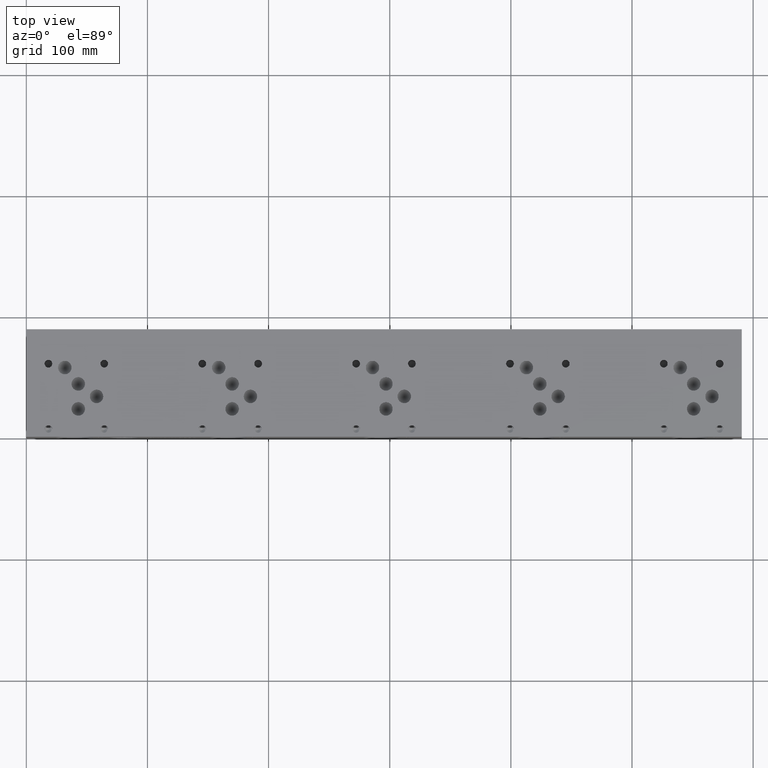
[diagram: clean part render]
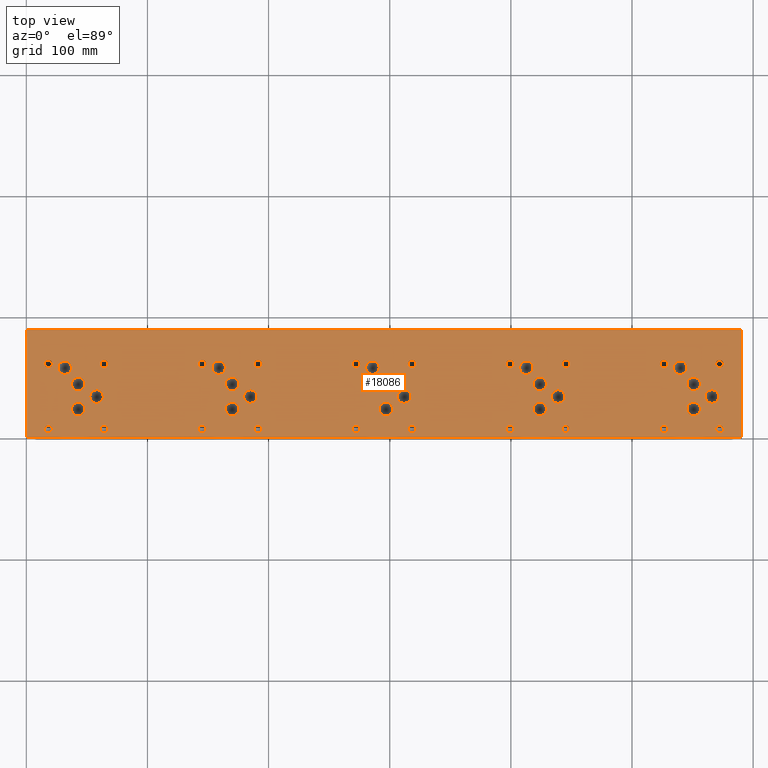
[diagram: same view with one face highlighted and labeled with its STEP entity id]
A machine part, top view. The second image highlights one B-rep face of the part: STEP entity #18086.
In plain terms, the highlighted planar face has unit normal (0, 0, 1).
Its self-contained STEP definition (entity closure, byte-faithful):
#632=CIRCLE('',#18703,3.175);
#633=CIRCLE('',#18704,3.175);
#639=CIRCLE('',#18714,3.175);
#640=CIRCLE('',#18715,3.175);
#646=CIRCLE('',#18725,3.175);
#647=CIRCLE('',#18726,3.175);
#653=CIRCLE('',#18736,3.175);
#654=CIRCLE('',#18737,3.175);
#660=CIRCLE('',#18747,3.175);
#661=CIRCLE('',#18748,3.175);
#667=CIRCLE('',#18758,3.175);
#668=CIRCLE('',#18759,3.175);
#674=CIRCLE('',#18769,3.175);
#675=CIRCLE('',#18770,3.175);
#681=CIRCLE('',#18780,3.175);
#682=CIRCLE('',#18781,3.175);
#688=CIRCLE('',#18791,3.175);
#689=CIRCLE('',#18792,3.175);
#695=CIRCLE('',#18802,3.175);
#696=CIRCLE('',#18803,3.175);
#702=CIRCLE('',#18813,3.175);
#703=CIRCLE('',#18814,3.175);
#709=CIRCLE('',#18824,3.175);
#710=CIRCLE('',#18825,3.175);
#716=CIRCLE('',#18835,3.175);
#717=CIRCLE('',#18836,3.175);
#723=CIRCLE('',#18846,3.175);
#724=CIRCLE('',#18847,3.175);
#730=CIRCLE('',#18857,3.175);
#731=CIRCLE('',#18858,3.175);
#737=CIRCLE('',#18868,3.175);
#738=CIRCLE('',#18869,3.175);
#948=CIRCLE('',#19223,5.5626);
#949=CIRCLE('',#19224,5.5626);
#952=CIRCLE('',#19229,5.5626);
#953=CIRCLE('',#19230,5.5626);
#956=CIRCLE('',#19235,5.5626);
#957=CIRCLE('',#19236,5.5626);
#960=CIRCLE('',#19241,5.5626);
#961=CIRCLE('',#19242,5.5626);
#964=CIRCLE('',#19247,5.5626);
#965=CIRCLE('',#19248,5.5626);
#968=CIRCLE('',#19253,5.5626);
#969=CIRCLE('',#19254,5.5626);
#972=CIRCLE('',#19259,5.5626);
#973=CIRCLE('',#19260,5.5626);
#976=CIRCLE('',#19265,5.5626);
#977=CIRCLE('',#19266,5.5626);
#980=CIRCLE('',#19271,5.5626);
#981=CIRCLE('',#19272,5.5626);
#984=CIRCLE('',#19277,5.5626);
#985=CIRCLE('',#19278,5.5626);
#988=CIRCLE('',#19283,5.5626);
#989=CIRCLE('',#19284,5.5626);
#992=CIRCLE('',#19289,5.5626);
#993=CIRCLE('',#19290,5.5626);
#996=CIRCLE('',#19295,5.5626);
#997=CIRCLE('',#19296,5.5626);
#1000=CIRCLE('',#19301,5.5626);
#1001=CIRCLE('',#19302,5.5626);
#1004=CIRCLE('',#19307,5.5626);
#1005=CIRCLE('',#19308,5.5626);
#1008=CIRCLE('',#19313,5.5626);
#1009=CIRCLE('',#19314,5.5626);
#1012=CIRCLE('',#19319,5.5626);
#1013=CIRCLE('',#19320,5.5626);
#1016=CIRCLE('',#19325,5.5626);
#1017=CIRCLE('',#19326,5.5626);
#1020=CIRCLE('',#19331,5.5626);
#1021=CIRCLE('',#19332,5.5626);
#1024=CIRCLE('',#19337,5.5626);
#1025=CIRCLE('',#19338,5.5626);
#1031=CIRCLE('',#19347,3.175);
#1032=CIRCLE('',#19348,3.175);
#1038=CIRCLE('',#19358,3.175);
#1039=CIRCLE('',#19359,3.175);
#1045=CIRCLE('',#19369,3.175);
#1046=CIRCLE('',#19370,3.175);
#1052=CIRCLE('',#19380,3.175);
#1053=CIRCLE('',#19381,3.175);
#1629=FACE_BOUND('',#3691,.T.);
#1630=FACE_BOUND('',#3692,.T.);
#1631=FACE_BOUND('',#3693,.T.);
#1632=FACE_BOUND('',#3694,.T.);
#1633=FACE_BOUND('',#3695,.T.);
#1634=FACE_BOUND('',#3696,.T.);
#1635=FACE_BOUND('',#3697,.T.);
#1636=FACE_BOUND('',#3698,.T.);
#1637=FACE_BOUND('',#3699,.T.);
#1638=FACE_BOUND('',#3700,.T.);
#1639=FACE_BOUND('',#3701,.T.);
#1640=FACE_BOUND('',#3702,.T.);
#1641=FACE_BOUND('',#3703,.T.);
#1642=FACE_BOUND('',#3704,.T.);
#1643=FACE_BOUND('',#3705,.T.);
#1644=FACE_BOUND('',#3706,.T.);
#1645=FACE_BOUND('',#3707,.T.);
#1646=FACE_BOUND('',#3708,.T.);
#1647=FACE_BOUND('',#3709,.T.);
#1648=FACE_BOUND('',#3710,.T.);
#1649=FACE_BOUND('',#3711,.T.);
#1650=FACE_BOUND('',#3712,.T.);
#1651=FACE_BOUND('',#3713,.T.);
#1652=FACE_BOUND('',#3714,.T.);
#1653=FACE_BOUND('',#3715,.T.);
#1654=FACE_BOUND('',#3716,.T.);
#1655=FACE_BOUND('',#3717,.T.);
#1656=FACE_BOUND('',#3718,.T.);
#1657=FACE_BOUND('',#3719,.T.);
#1658=FACE_BOUND('',#3720,.T.);
#1659=FACE_BOUND('',#3721,.T.);
#1660=FACE_BOUND('',#3722,.T.);
#1661=FACE_BOUND('',#3723,.T.);
#1662=FACE_BOUND('',#3724,.T.);
#1663=FACE_BOUND('',#3725,.T.);
#1664=FACE_BOUND('',#3726,.T.);
#1665=FACE_BOUND('',#3727,.T.);
#1666=FACE_BOUND('',#3728,.T.);
#1667=FACE_BOUND('',#3729,.T.);
#1668=FACE_BOUND('',#3730,.T.);
#2610=FACE_OUTER_BOUND('',#3690,.T.);
#3690=EDGE_LOOP('',(#15992,#15993,#15994,#15995));
#3691=EDGE_LOOP('',(#15996,#15997));
#3692=EDGE_LOOP('',(#15998,#15999));
#3693=EDGE_LOOP('',(#16000,#16001));
#3694=EDGE_LOOP('',(#16002,#16003));
#3695=EDGE_LOOP('',(#16004,#16005));
#3696=EDGE_LOOP('',(#16006,#16007));
#3697=EDGE_LOOP('',(#16008,#16009));
#3698=EDGE_LOOP('',(#16010,#16011));
#3699=EDGE_LOOP('',(#16012,#16013));
#3700=EDGE_LOOP('',(#16014,#16015));
#3701=EDGE_LOOP('',(#16016,#16017));
#3702=EDGE_LOOP('',(#16018,#16019));
#3703=EDGE_LOOP('',(#16020,#16021));
#3704=EDGE_LOOP('',(#16022,#16023));
#3705=EDGE_LOOP('',(#16024,#16025));
#3706=EDGE_LOOP('',(#16026,#16027));
#3707=EDGE_LOOP('',(#16028,#16029));
#3708=EDGE_LOOP('',(#16030,#16031));
#3709=EDGE_LOOP('',(#16032,#16033));
#3710=EDGE_LOOP('',(#16034,#16035));
#3711=EDGE_LOOP('',(#16036,#16037));
#3712=EDGE_LOOP('',(#16038,#16039));
#3713=EDGE_LOOP('',(#16040,#16041));
#3714=EDGE_LOOP('',(#16042,#16043));
#3715=EDGE_LOOP('',(#16044,#16045));
#3716=EDGE_LOOP('',(#16046,#16047));
#3717=EDGE_LOOP('',(#16048,#16049));
#3718=EDGE_LOOP('',(#16050,#16051));
#3719=EDGE_LOOP('',(#16052,#16053));
#3720=EDGE_LOOP('',(#16054,#16055));
#3721=EDGE_LOOP('',(#16056,#16057));
#3722=EDGE_LOOP('',(#16058,#16059));
#3723=EDGE_LOOP('',(#16060,#16061));
#3724=EDGE_LOOP('',(#16062,#16063));
#3725=EDGE_LOOP('',(#16064,#16065));
#3726=EDGE_LOOP('',(#16066,#16067));
#3727=EDGE_LOOP('',(#16068,#16069));
#3728=EDGE_LOOP('',(#16070,#16071));
#3729=EDGE_LOOP('',(#16072,#16073));
#3730=EDGE_LOOP('',(#16074,#16075));
#3767=LINE('',#23558,#5285);
#4889=LINE('',#29275,#6407);
#4923=LINE('',#29497,#6441);
#5249=LINE('',#31543,#6767);
#5285=VECTOR('',#19452,10.);
#6407=VECTOR('',#21328,10.);
#6441=VECTOR('',#21398,10.);
#6767=VECTOR('',#23474,10.);
#6792=VERTEX_POINT('',#23555);
#6793=VERTEX_POINT('',#23557);
#7835=VERTEX_POINT('',#29273);
#7877=VERTEX_POINT('',#29496);
#8043=VERTEX_POINT('',#30166);
#8044=VERTEX_POINT('',#30167);
#8051=VERTEX_POINT('',#30188);
#8052=VERTEX_POINT('',#30189);
#8059=VERTEX_POINT('',#30210);
#8060=VERTEX_POINT('',#30211);
#8067=VERTEX_POINT('',#30232);
#8068=VERTEX_POINT('',#30233);
#8075=VERTEX_POINT('',#30254);
#8076=VERTEX_POINT('',#30255);
#8083=VERTEX_POINT('',#30276);
#8084=VERTEX_POINT('',#30277);
#8091=VERTEX_POINT('',#30298);
#8092=VERTEX_POINT('',#30299);
#8099=VERTEX_POINT('',#30320);
#8100=VERTEX_POINT('',#30321);
#8107=VERTEX_POINT('',#30342);
#8108=VERTEX_POINT('',#30343);
#8115=VERTEX_POINT('',#30364);
#8116=VERTEX_POINT('',#30365);
#8123=VERTEX_POINT('',#30386);
#8124=VERTEX_POINT('',#30387);
#8131=VERTEX_POINT('',#30408);
#8132=VERTEX_POINT('',#30409);
#8139=VERTEX_POINT('',#30430);
#8140=VERTEX_POINT('',#30431);
#8147=VERTEX_POINT('',#30452);
#8148=VERTEX_POINT('',#30453);
#8155=VERTEX_POINT('',#30474);
#8156=VERTEX_POINT('',#30475);
#8163=VERTEX_POINT('',#30496);
#8164=VERTEX_POINT('',#30497);
#8394=VERTEX_POINT('',#31200);
#8395=VERTEX_POINT('',#31201);
#8399=VERTEX_POINT('',#31213);
#8400=VERTEX_POINT('',#31214);
#8404=VERTEX_POINT('',#31226);
#8405=VERTEX_POINT('',#31227);
#8409=VERTEX_POINT('',#31239);
#8410=VERTEX_POINT('',#31240);
#8414=VERTEX_POINT('',#31252);
#8415=VERTEX_POINT('',#31253);
#8419=VERTEX_POINT('',#31265);
#8420=VERTEX_POINT('',#31266);
#8424=VERTEX_POINT('',#31278);
#8425=VERTEX_POINT('',#31279);
#8429=VERTEX_POINT('',#31291);
#8430=VERTEX_POINT('',#31292);
#8434=VERTEX_POINT('',#31304);
#8435=VERTEX_POINT('',#31305);
#8439=VERTEX_POINT('',#31317);
#8440=VERTEX_POINT('',#31318);
#8444=VERTEX_POINT('',#31330);
#8445=VERTEX_POINT('',#31331);
#8449=VERTEX_POINT('',#31343);
#8450=VERTEX_POINT('',#31344);
#8454=VERTEX_POINT('',#31356);
#8455=VERTEX_POINT('',#31357);
#8459=VERTEX_POINT('',#31369);
#8460=VERTEX_POINT('',#31370);
#8464=VERTEX_POINT('',#31382);
#8465=VERTEX_POINT('',#31383);
#8469=VERTEX_POINT('',#31395);
#8470=VERTEX_POINT('',#31396);
#8474=VERTEX_POINT('',#31408);
#8475=VERTEX_POINT('',#31409);
#8479=VERTEX_POINT('',#31421);
#8480=VERTEX_POINT('',#31422);
#8484=VERTEX_POINT('',#31434);
#8485=VERTEX_POINT('',#31435);
#8489=VERTEX_POINT('',#31447);
#8490=VERTEX_POINT('',#31448);
#8497=VERTEX_POINT('',#31467);
#8498=VERTEX_POINT('',#31468);
#8505=VERTEX_POINT('',#31489);
#8506=VERTEX_POINT('',#31490);
#8513=VERTEX_POINT('',#31511);
#8514=VERTEX_POINT('',#31512);
#8521=VERTEX_POINT('',#31533);
#8522=VERTEX_POINT('',#31534);
#8558=EDGE_CURVE('',#6793,#6792,#3767,.T.);
#10102=EDGE_CURVE('',#6792,#7835,#4889,.T.);
#10160=EDGE_CURVE('',#7877,#6793,#4923,.T.);
#10404=EDGE_CURVE('',#8043,#8044,#632,.T.);
#10405=EDGE_CURVE('',#8044,#8043,#633,.T.);
#10414=EDGE_CURVE('',#8051,#8052,#639,.T.);
#10415=EDGE_CURVE('',#8052,#8051,#640,.T.);
#10424=EDGE_CURVE('',#8059,#8060,#646,.T.);
#10425=EDGE_CURVE('',#8060,#8059,#647,.T.);
#10434=EDGE_CURVE('',#8067,#8068,#653,.T.);
#10435=EDGE_CURVE('',#8068,#8067,#654,.T.);
#10444=EDGE_CURVE('',#8075,#8076,#660,.T.);
#10445=EDGE_CURVE('',#8076,#8075,#661,.T.);
#10454=EDGE_CURVE('',#8083,#8084,#667,.T.);
#10455=EDGE_CURVE('',#8084,#8083,#668,.T.);
#10464=EDGE_CURVE('',#8091,#8092,#674,.T.);
#10465=EDGE_CURVE('',#8092,#8091,#675,.T.);
#10474=EDGE_CURVE('',#8099,#8100,#681,.T.);
#10475=EDGE_CURVE('',#8100,#8099,#682,.T.);
#10484=EDGE_CURVE('',#8107,#8108,#688,.T.);
#10485=EDGE_CURVE('',#8108,#8107,#689,.T.);
#10494=EDGE_CURVE('',#8115,#8116,#695,.T.);
#10495=EDGE_CURVE('',#8116,#8115,#696,.T.);
#10504=EDGE_CURVE('',#8123,#8124,#702,.T.);
#10505=EDGE_CURVE('',#8124,#8123,#703,.T.);
#10514=EDGE_CURVE('',#8131,#8132,#709,.T.);
#10515=EDGE_CURVE('',#8132,#8131,#710,.T.);
#10524=EDGE_CURVE('',#8139,#8140,#716,.T.);
#10525=EDGE_CURVE('',#8140,#8139,#717,.T.);
#10534=EDGE_CURVE('',#8147,#8148,#723,.T.);
#10535=EDGE_CURVE('',#8148,#8147,#724,.T.);
#10544=EDGE_CURVE('',#8155,#8156,#730,.T.);
#10545=EDGE_CURVE('',#8156,#8155,#731,.T.);
#10554=EDGE_CURVE('',#8163,#8164,#737,.T.);
#10555=EDGE_CURVE('',#8164,#8163,#738,.T.);
#10883=EDGE_CURVE('',#8394,#8395,#948,.T.);
#10884=EDGE_CURVE('',#8395,#8394,#949,.T.);
#10889=EDGE_CURVE('',#8399,#8400,#952,.T.);
#10890=EDGE_CURVE('',#8400,#8399,#953,.T.);
#10895=EDGE_CURVE('',#8404,#8405,#956,.T.);
#10896=EDGE_CURVE('',#8405,#8404,#957,.T.);
#10901=EDGE_CURVE('',#8409,#8410,#960,.T.);
#10902=EDGE_CURVE('',#8410,#8409,#961,.T.);
#10907=EDGE_CURVE('',#8414,#8415,#964,.T.);
#10908=EDGE_CURVE('',#8415,#8414,#965,.T.);
#10913=EDGE_CURVE('',#8419,#8420,#968,.T.);
#10914=EDGE_CURVE('',#8420,#8419,#969,.T.);
#10919=EDGE_CURVE('',#8424,#8425,#972,.T.);
#10920=EDGE_CURVE('',#8425,#8424,#973,.T.);
#10925=EDGE_CURVE('',#8429,#8430,#976,.T.);
#10926=EDGE_CURVE('',#8430,#8429,#977,.T.);
#10931=EDGE_CURVE('',#8434,#8435,#980,.T.);
#10932=EDGE_CURVE('',#8435,#8434,#981,.T.);
#10937=EDGE_CURVE('',#8439,#8440,#984,.T.);
#10938=EDGE_CURVE('',#8440,#8439,#985,.T.);
#10943=EDGE_CURVE('',#8444,#8445,#988,.T.);
#10944=EDGE_CURVE('',#8445,#8444,#989,.T.);
#10949=EDGE_CURVE('',#8449,#8450,#992,.T.);
#10950=EDGE_CURVE('',#8450,#8449,#993,.T.);
#10955=EDGE_CURVE('',#8454,#8455,#996,.T.);
#10956=EDGE_CURVE('',#8455,#8454,#997,.T.);
#10961=EDGE_CURVE('',#8459,#8460,#1000,.T.);
#10962=EDGE_CURVE('',#8460,#8459,#1001,.T.);
#10967=EDGE_CURVE('',#8464,#8465,#1004,.T.);
#10968=EDGE_CURVE('',#8465,#8464,#1005,.T.);
#10973=EDGE_CURVE('',#8469,#8470,#1008,.T.);
#10974=EDGE_CURVE('',#8470,#8469,#1009,.T.);
#10979=EDGE_CURVE('',#8474,#8475,#1012,.T.);
#10980=EDGE_CURVE('',#8475,#8474,#1013,.T.);
#10985=EDGE_CURVE('',#8479,#8480,#1016,.T.);
#10986=EDGE_CURVE('',#8480,#8479,#1017,.T.);
#10991=EDGE_CURVE('',#8484,#8485,#1020,.T.);
#10992=EDGE_CURVE('',#8485,#8484,#1021,.T.);
#10997=EDGE_CURVE('',#8489,#8490,#1024,.T.);
#10998=EDGE_CURVE('',#8490,#8489,#1025,.T.);
#11006=EDGE_CURVE('',#8497,#8498,#1031,.T.);
#11007=EDGE_CURVE('',#8498,#8497,#1032,.T.);
#11016=EDGE_CURVE('',#8505,#8506,#1038,.T.);
#11017=EDGE_CURVE('',#8506,#8505,#1039,.T.);
#11026=EDGE_CURVE('',#8513,#8514,#1045,.T.);
#11027=EDGE_CURVE('',#8514,#8513,#1046,.T.);
#11036=EDGE_CURVE('',#8521,#8522,#1052,.T.);
#11037=EDGE_CURVE('',#8522,#8521,#1053,.T.);
#11041=EDGE_CURVE('',#7835,#7877,#5249,.T.);
#15992=ORIENTED_EDGE('',*,*,#8558,.T.);
#15993=ORIENTED_EDGE('',*,*,#10102,.T.);
#15994=ORIENTED_EDGE('',*,*,#11041,.T.);
#15995=ORIENTED_EDGE('',*,*,#10160,.T.);
#15996=ORIENTED_EDGE('',*,*,#10404,.T.);
#15997=ORIENTED_EDGE('',*,*,#10405,.T.);
#15998=ORIENTED_EDGE('',*,*,#10414,.T.);
#15999=ORIENTED_EDGE('',*,*,#10415,.T.);
#16000=ORIENTED_EDGE('',*,*,#10424,.T.);
#16001=ORIENTED_EDGE('',*,*,#10425,.T.);
#16002=ORIENTED_EDGE('',*,*,#10434,.T.);
#16003=ORIENTED_EDGE('',*,*,#10435,.T.);
#16004=ORIENTED_EDGE('',*,*,#10444,.T.);
#16005=ORIENTED_EDGE('',*,*,#10445,.T.);
#16006=ORIENTED_EDGE('',*,*,#10454,.T.);
#16007=ORIENTED_EDGE('',*,*,#10455,.T.);
#16008=ORIENTED_EDGE('',*,*,#10464,.T.);
#16009=ORIENTED_EDGE('',*,*,#10465,.T.);
#16010=ORIENTED_EDGE('',*,*,#10474,.T.);
#16011=ORIENTED_EDGE('',*,*,#10475,.T.);
#16012=ORIENTED_EDGE('',*,*,#10484,.T.);
#16013=ORIENTED_EDGE('',*,*,#10485,.T.);
#16014=ORIENTED_EDGE('',*,*,#10494,.T.);
#16015=ORIENTED_EDGE('',*,*,#10495,.T.);
#16016=ORIENTED_EDGE('',*,*,#10504,.T.);
#16017=ORIENTED_EDGE('',*,*,#10505,.T.);
#16018=ORIENTED_EDGE('',*,*,#10514,.T.);
#16019=ORIENTED_EDGE('',*,*,#10515,.T.);
#16020=ORIENTED_EDGE('',*,*,#10524,.T.);
#16021=ORIENTED_EDGE('',*,*,#10525,.T.);
#16022=ORIENTED_EDGE('',*,*,#10534,.T.);
#16023=ORIENTED_EDGE('',*,*,#10535,.T.);
#16024=ORIENTED_EDGE('',*,*,#10544,.T.);
#16025=ORIENTED_EDGE('',*,*,#10545,.T.);
#16026=ORIENTED_EDGE('',*,*,#10554,.T.);
#16027=ORIENTED_EDGE('',*,*,#10555,.T.);
#16028=ORIENTED_EDGE('',*,*,#10883,.T.);
#16029=ORIENTED_EDGE('',*,*,#10884,.T.);
#16030=ORIENTED_EDGE('',*,*,#10889,.T.);
#16031=ORIENTED_EDGE('',*,*,#10890,.T.);
#16032=ORIENTED_EDGE('',*,*,#10895,.T.);
#16033=ORIENTED_EDGE('',*,*,#10896,.T.);
#16034=ORIENTED_EDGE('',*,*,#10901,.T.);
#16035=ORIENTED_EDGE('',*,*,#10902,.T.);
#16036=ORIENTED_EDGE('',*,*,#10907,.T.);
#16037=ORIENTED_EDGE('',*,*,#10908,.T.);
#16038=ORIENTED_EDGE('',*,*,#10913,.T.);
#16039=ORIENTED_EDGE('',*,*,#10914,.T.);
#16040=ORIENTED_EDGE('',*,*,#10919,.T.);
#16041=ORIENTED_EDGE('',*,*,#10920,.T.);
#16042=ORIENTED_EDGE('',*,*,#10925,.T.);
#16043=ORIENTED_EDGE('',*,*,#10926,.T.);
#16044=ORIENTED_EDGE('',*,*,#10931,.T.);
#16045=ORIENTED_EDGE('',*,*,#10932,.T.);
#16046=ORIENTED_EDGE('',*,*,#10937,.T.);
#16047=ORIENTED_EDGE('',*,*,#10938,.T.);
#16048=ORIENTED_EDGE('',*,*,#10943,.T.);
#16049=ORIENTED_EDGE('',*,*,#10944,.T.);
#16050=ORIENTED_EDGE('',*,*,#10949,.T.);
#16051=ORIENTED_EDGE('',*,*,#10950,.T.);
#16052=ORIENTED_EDGE('',*,*,#10955,.T.);
#16053=ORIENTED_EDGE('',*,*,#10956,.T.);
#16054=ORIENTED_EDGE('',*,*,#10961,.T.);
#16055=ORIENTED_EDGE('',*,*,#10962,.T.);
#16056=ORIENTED_EDGE('',*,*,#10967,.T.);
#16057=ORIENTED_EDGE('',*,*,#10968,.T.);
#16058=ORIENTED_EDGE('',*,*,#10973,.T.);
#16059=ORIENTED_EDGE('',*,*,#10974,.T.);
#16060=ORIENTED_EDGE('',*,*,#10979,.T.);
#16061=ORIENTED_EDGE('',*,*,#10980,.T.);
#16062=ORIENTED_EDGE('',*,*,#10985,.T.);
#16063=ORIENTED_EDGE('',*,*,#10986,.T.);
#16064=ORIENTED_EDGE('',*,*,#10991,.T.);
#16065=ORIENTED_EDGE('',*,*,#10992,.T.);
#16066=ORIENTED_EDGE('',*,*,#10997,.T.);
#16067=ORIENTED_EDGE('',*,*,#10998,.T.);
#16068=ORIENTED_EDGE('',*,*,#11006,.T.);
#16069=ORIENTED_EDGE('',*,*,#11007,.T.);
#16070=ORIENTED_EDGE('',*,*,#11016,.T.);
#16071=ORIENTED_EDGE('',*,*,#11017,.T.);
#16072=ORIENTED_EDGE('',*,*,#11026,.T.);
#16073=ORIENTED_EDGE('',*,*,#11027,.T.);
#16074=ORIENTED_EDGE('',*,*,#11036,.T.);
#16075=ORIENTED_EDGE('',*,*,#11037,.T.);
#16544=PLANE('',#19387);
#18086=ADVANCED_FACE('',(#2610,#1629,#1630,#1631,#1632,#1633,#1634,#1635,
#1636,#1637,#1638,#1639,#1640,#1641,#1642,#1643,#1644,#1645,#1646,#1647,
#1648,#1649,#1650,#1651,#1652,#1653,#1654,#1655,#1656,#1657,#1658,#1659,
#1660,#1661,#1662,#1663,#1664,#1665,#1666,#1667,#1668),#16544,.T.);
#18703=AXIS2_PLACEMENT_3D('',#30168,#21895,#21896);
#18704=AXIS2_PLACEMENT_3D('',#30169,#21897,#21898);
#18714=AXIS2_PLACEMENT_3D('',#30190,#21920,#21921);
#18715=AXIS2_PLACEMENT_3D('',#30191,#21922,#21923);
#18725=AXIS2_PLACEMENT_3D('',#30212,#21945,#21946);
#18726=AXIS2_PLACEMENT_3D('',#30213,#21947,#21948);
#18736=AXIS2_PLACEMENT_3D('',#30234,#21970,#21971);
#18737=AXIS2_PLACEMENT_3D('',#30235,#21972,#21973);
#18747=AXIS2_PLACEMENT_3D('',#30256,#21995,#21996);
#18748=AXIS2_PLACEMENT_3D('',#30257,#21997,#21998);
#18758=AXIS2_PLACEMENT_3D('',#30278,#22020,#22021);
#18759=AXIS2_PLACEMENT_3D('',#30279,#22022,#22023);
#18769=AXIS2_PLACEMENT_3D('',#30300,#22045,#22046);
#18770=AXIS2_PLACEMENT_3D('',#30301,#22047,#22048);
#18780=AXIS2_PLACEMENT_3D('',#30322,#22070,#22071);
#18781=AXIS2_PLACEMENT_3D('',#30323,#22072,#22073);
#18791=AXIS2_PLACEMENT_3D('',#30344,#22095,#22096);
#18792=AXIS2_PLACEMENT_3D('',#30345,#22097,#22098);
#18802=AXIS2_PLACEMENT_3D('',#30366,#22120,#22121);
#18803=AXIS2_PLACEMENT_3D('',#30367,#22122,#22123);
#18813=AXIS2_PLACEMENT_3D('',#30388,#22145,#22146);
#18814=AXIS2_PLACEMENT_3D('',#30389,#22147,#22148);
#18824=AXIS2_PLACEMENT_3D('',#30410,#22170,#22171);
#18825=AXIS2_PLACEMENT_3D('',#30411,#22172,#22173);
#18835=AXIS2_PLACEMENT_3D('',#30432,#22195,#22196);
#18836=AXIS2_PLACEMENT_3D('',#30433,#22197,#22198);
#18846=AXIS2_PLACEMENT_3D('',#30454,#22220,#22221);
#18847=AXIS2_PLACEMENT_3D('',#30455,#22222,#22223);
#18857=AXIS2_PLACEMENT_3D('',#30476,#22245,#22246);
#18858=AXIS2_PLACEMENT_3D('',#30477,#22247,#22248);
#18868=AXIS2_PLACEMENT_3D('',#30498,#22270,#22271);
#18869=AXIS2_PLACEMENT_3D('',#30499,#22272,#22273);
#19223=AXIS2_PLACEMENT_3D('',#31202,#23098,#23099);
#19224=AXIS2_PLACEMENT_3D('',#31203,#23100,#23101);
#19229=AXIS2_PLACEMENT_3D('',#31215,#23112,#23113);
#19230=AXIS2_PLACEMENT_3D('',#31216,#23114,#23115);
#19235=AXIS2_PLACEMENT_3D('',#31228,#23126,#23127);
#19236=AXIS2_PLACEMENT_3D('',#31229,#23128,#23129);
#19241=AXIS2_PLACEMENT_3D('',#31241,#23140,#23141);
#19242=AXIS2_PLACEMENT_3D('',#31242,#23142,#23143);
#19247=AXIS2_PLACEMENT_3D('',#31254,#23154,#23155);
#19248=AXIS2_PLACEMENT_3D('',#31255,#23156,#23157);
#19253=AXIS2_PLACEMENT_3D('',#31267,#23168,#23169);
#19254=AXIS2_PLACEMENT_3D('',#31268,#23170,#23171);
#19259=AXIS2_PLACEMENT_3D('',#31280,#23182,#23183);
#19260=AXIS2_PLACEMENT_3D('',#31281,#23184,#23185);
#19265=AXIS2_PLACEMENT_3D('',#31293,#23196,#23197);
#19266=AXIS2_PLACEMENT_3D('',#31294,#23198,#23199);
#19271=AXIS2_PLACEMENT_3D('',#31306,#23210,#23211);
#19272=AXIS2_PLACEMENT_3D('',#31307,#23212,#23213);
#19277=AXIS2_PLACEMENT_3D('',#31319,#23224,#23225);
#19278=AXIS2_PLACEMENT_3D('',#31320,#23226,#23227);
#19283=AXIS2_PLACEMENT_3D('',#31332,#23238,#23239);
#19284=AXIS2_PLACEMENT_3D('',#31333,#23240,#23241);
#19289=AXIS2_PLACEMENT_3D('',#31345,#23252,#23253);
#19290=AXIS2_PLACEMENT_3D('',#31346,#23254,#23255);
#19295=AXIS2_PLACEMENT_3D('',#31358,#23266,#23267);
#19296=AXIS2_PLACEMENT_3D('',#31359,#23268,#23269);
#19301=AXIS2_PLACEMENT_3D('',#31371,#23280,#23281);
#19302=AXIS2_PLACEMENT_3D('',#31372,#23282,#23283);
#19307=AXIS2_PLACEMENT_3D('',#31384,#23294,#23295);
#19308=AXIS2_PLACEMENT_3D('',#31385,#23296,#23297);
#19313=AXIS2_PLACEMENT_3D('',#31397,#23308,#23309);
#19314=AXIS2_PLACEMENT_3D('',#31398,#23310,#23311);
#19319=AXIS2_PLACEMENT_3D('',#31410,#23322,#23323);
#19320=AXIS2_PLACEMENT_3D('',#31411,#23324,#23325);
#19325=AXIS2_PLACEMENT_3D('',#31423,#23336,#23337);
#19326=AXIS2_PLACEMENT_3D('',#31424,#23338,#23339);
#19331=AXIS2_PLACEMENT_3D('',#31436,#23350,#23351);
#19332=AXIS2_PLACEMENT_3D('',#31437,#23352,#23353);
#19337=AXIS2_PLACEMENT_3D('',#31449,#23364,#23365);
#19338=AXIS2_PLACEMENT_3D('',#31450,#23366,#23367);
#19347=AXIS2_PLACEMENT_3D('',#31469,#23386,#23387);
#19348=AXIS2_PLACEMENT_3D('',#31470,#23388,#23389);
#19358=AXIS2_PLACEMENT_3D('',#31491,#23411,#23412);
#19359=AXIS2_PLACEMENT_3D('',#31492,#23413,#23414);
#19369=AXIS2_PLACEMENT_3D('',#31513,#23436,#23437);
#19370=AXIS2_PLACEMENT_3D('',#31514,#23438,#23439);
#19380=AXIS2_PLACEMENT_3D('',#31535,#23461,#23462);
#19381=AXIS2_PLACEMENT_3D('',#31536,#23463,#23464);
#19387=AXIS2_PLACEMENT_3D('',#31546,#23479,#23480);
#19452=DIRECTION('',(1.,0.,0.));
#21328=DIRECTION('',(0.,1.,0.));
#21398=DIRECTION('',(0.,-1.,0.));
#21895=DIRECTION('center_axis',(0.,0.,-1.));
#21896=DIRECTION('ref_axis',(1.,0.,0.));
#21897=DIRECTION('center_axis',(0.,0.,-1.));
#21898=DIRECTION('ref_axis',(1.,0.,0.));
#21920=DIRECTION('center_axis',(0.,0.,-1.));
#21921=DIRECTION('ref_axis',(1.,0.,0.));
#21922=DIRECTION('center_axis',(0.,0.,-1.));
#21923=DIRECTION('ref_axis',(1.,0.,0.));
#21945=DIRECTION('center_axis',(0.,0.,-1.));
#21946=DIRECTION('ref_axis',(1.,0.,0.));
#21947=DIRECTION('center_axis',(0.,0.,-1.));
#21948=DIRECTION('ref_axis',(1.,0.,0.));
#21970=DIRECTION('center_axis',(0.,0.,-1.));
#21971=DIRECTION('ref_axis',(1.,0.,0.));
#21972=DIRECTION('center_axis',(0.,0.,-1.));
#21973=DIRECTION('ref_axis',(1.,0.,0.));
#21995=DIRECTION('center_axis',(0.,0.,-1.));
#21996=DIRECTION('ref_axis',(1.,0.,0.));
#21997=DIRECTION('center_axis',(0.,0.,-1.));
#21998=DIRECTION('ref_axis',(1.,0.,0.));
#22020=DIRECTION('center_axis',(0.,0.,-1.));
#22021=DIRECTION('ref_axis',(1.,0.,0.));
#22022=DIRECTION('center_axis',(0.,0.,-1.));
#22023=DIRECTION('ref_axis',(1.,0.,0.));
#22045=DIRECTION('center_axis',(0.,0.,-1.));
#22046=DIRECTION('ref_axis',(1.,0.,0.));
#22047=DIRECTION('center_axis',(0.,0.,-1.));
#22048=DIRECTION('ref_axis',(1.,0.,0.));
#22070=DIRECTION('center_axis',(0.,0.,-1.));
#22071=DIRECTION('ref_axis',(1.,0.,0.));
#22072=DIRECTION('center_axis',(0.,0.,-1.));
#22073=DIRECTION('ref_axis',(1.,0.,0.));
#22095=DIRECTION('center_axis',(0.,0.,-1.));
#22096=DIRECTION('ref_axis',(1.,0.,0.));
#22097=DIRECTION('center_axis',(0.,0.,-1.));
#22098=DIRECTION('ref_axis',(1.,0.,0.));
#22120=DIRECTION('center_axis',(0.,0.,-1.));
#22121=DIRECTION('ref_axis',(1.,0.,0.));
#22122=DIRECTION('center_axis',(0.,0.,-1.));
#22123=DIRECTION('ref_axis',(1.,0.,0.));
#22145=DIRECTION('center_axis',(0.,0.,-1.));
#22146=DIRECTION('ref_axis',(1.,0.,0.));
#22147=DIRECTION('center_axis',(0.,0.,-1.));
#22148=DIRECTION('ref_axis',(1.,0.,0.));
#22170=DIRECTION('center_axis',(0.,0.,-1.));
#22171=DIRECTION('ref_axis',(1.,0.,0.));
#22172=DIRECTION('center_axis',(0.,0.,-1.));
#22173=DIRECTION('ref_axis',(1.,0.,0.));
#22195=DIRECTION('center_axis',(0.,0.,-1.));
#22196=DIRECTION('ref_axis',(1.,0.,0.));
#22197=DIRECTION('center_axis',(0.,0.,-1.));
#22198=DIRECTION('ref_axis',(1.,0.,0.));
#22220=DIRECTION('center_axis',(0.,0.,-1.));
#22221=DIRECTION('ref_axis',(1.,0.,0.));
#22222=DIRECTION('center_axis',(0.,0.,-1.));
#22223=DIRECTION('ref_axis',(1.,0.,0.));
#22245=DIRECTION('center_axis',(0.,0.,-1.));
#22246=DIRECTION('ref_axis',(1.,0.,0.));
#22247=DIRECTION('center_axis',(0.,0.,-1.));
#22248=DIRECTION('ref_axis',(1.,0.,0.));
#22270=DIRECTION('center_axis',(0.,0.,-1.));
#22271=DIRECTION('ref_axis',(1.,0.,0.));
#22272=DIRECTION('center_axis',(0.,0.,-1.));
#22273=DIRECTION('ref_axis',(1.,0.,0.));
#23098=DIRECTION('center_axis',(0.,0.,-1.));
#23099=DIRECTION('ref_axis',(1.,0.,0.));
#23100=DIRECTION('center_axis',(0.,0.,-1.));
#23101=DIRECTION('ref_axis',(1.,0.,0.));
#23112=DIRECTION('center_axis',(0.,0.,-1.));
#23113=DIRECTION('ref_axis',(1.,0.,0.));
#23114=DIRECTION('center_axis',(0.,0.,-1.));
#23115=DIRECTION('ref_axis',(1.,0.,0.));
#23126=DIRECTION('center_axis',(0.,0.,-1.));
#23127=DIRECTION('ref_axis',(1.,0.,0.));
#23128=DIRECTION('center_axis',(0.,0.,-1.));
#23129=DIRECTION('ref_axis',(1.,0.,0.));
#23140=DIRECTION('center_axis',(0.,0.,-1.));
#23141=DIRECTION('ref_axis',(1.,0.,0.));
#23142=DIRECTION('center_axis',(0.,0.,-1.));
#23143=DIRECTION('ref_axis',(1.,0.,0.));
#23154=DIRECTION('center_axis',(0.,0.,-1.));
#23155=DIRECTION('ref_axis',(1.,0.,0.));
#23156=DIRECTION('center_axis',(0.,0.,-1.));
#23157=DIRECTION('ref_axis',(1.,0.,0.));
#23168=DIRECTION('center_axis',(0.,0.,-1.));
#23169=DIRECTION('ref_axis',(1.,0.,0.));
#23170=DIRECTION('center_axis',(0.,0.,-1.));
#23171=DIRECTION('ref_axis',(1.,0.,0.));
#23182=DIRECTION('center_axis',(0.,0.,-1.));
#23183=DIRECTION('ref_axis',(1.,0.,0.));
#23184=DIRECTION('center_axis',(0.,0.,-1.));
#23185=DIRECTION('ref_axis',(1.,0.,0.));
#23196=DIRECTION('center_axis',(0.,0.,-1.));
#23197=DIRECTION('ref_axis',(1.,0.,0.));
#23198=DIRECTION('center_axis',(0.,0.,-1.));
#23199=DIRECTION('ref_axis',(1.,0.,0.));
#23210=DIRECTION('center_axis',(0.,0.,-1.));
#23211=DIRECTION('ref_axis',(1.,0.,0.));
#23212=DIRECTION('center_axis',(0.,0.,-1.));
#23213=DIRECTION('ref_axis',(1.,0.,0.));
#23224=DIRECTION('center_axis',(0.,0.,-1.));
#23225=DIRECTION('ref_axis',(1.,0.,0.));
#23226=DIRECTION('center_axis',(0.,0.,-1.));
#23227=DIRECTION('ref_axis',(1.,0.,0.));
#23238=DIRECTION('center_axis',(0.,0.,-1.));
#23239=DIRECTION('ref_axis',(1.,0.,0.));
#23240=DIRECTION('center_axis',(0.,0.,-1.));
#23241=DIRECTION('ref_axis',(1.,0.,0.));
#23252=DIRECTION('center_axis',(0.,0.,-1.));
#23253=DIRECTION('ref_axis',(1.,0.,0.));
#23254=DIRECTION('center_axis',(0.,0.,-1.));
#23255=DIRECTION('ref_axis',(1.,0.,0.));
#23266=DIRECTION('center_axis',(0.,0.,-1.));
#23267=DIRECTION('ref_axis',(1.,0.,0.));
#23268=DIRECTION('center_axis',(0.,0.,-1.));
#23269=DIRECTION('ref_axis',(1.,0.,0.));
#23280=DIRECTION('center_axis',(0.,0.,-1.));
#23281=DIRECTION('ref_axis',(1.,0.,0.));
#23282=DIRECTION('center_axis',(0.,0.,-1.));
#23283=DIRECTION('ref_axis',(1.,0.,0.));
#23294=DIRECTION('center_axis',(0.,0.,-1.));
#23295=DIRECTION('ref_axis',(1.,0.,0.));
#23296=DIRECTION('center_axis',(0.,0.,-1.));
#23297=DIRECTION('ref_axis',(1.,0.,0.));
#23308=DIRECTION('center_axis',(0.,0.,-1.));
#23309=DIRECTION('ref_axis',(1.,0.,0.));
#23310=DIRECTION('center_axis',(0.,0.,-1.));
#23311=DIRECTION('ref_axis',(1.,0.,0.));
#23322=DIRECTION('center_axis',(0.,0.,-1.));
#23323=DIRECTION('ref_axis',(1.,0.,0.));
#23324=DIRECTION('center_axis',(0.,0.,-1.));
#23325=DIRECTION('ref_axis',(1.,0.,0.));
#23336=DIRECTION('center_axis',(0.,0.,-1.));
#23337=DIRECTION('ref_axis',(1.,0.,0.));
#23338=DIRECTION('center_axis',(0.,0.,-1.));
#23339=DIRECTION('ref_axis',(1.,0.,0.));
#23350=DIRECTION('center_axis',(0.,0.,-1.));
#23351=DIRECTION('ref_axis',(1.,0.,0.));
#23352=DIRECTION('center_axis',(0.,0.,-1.));
#23353=DIRECTION('ref_axis',(1.,0.,0.));
#23364=DIRECTION('center_axis',(0.,0.,-1.));
#23365=DIRECTION('ref_axis',(1.,0.,0.));
#23366=DIRECTION('center_axis',(0.,0.,-1.));
#23367=DIRECTION('ref_axis',(1.,0.,0.));
#23386=DIRECTION('center_axis',(0.,0.,-1.));
#23387=DIRECTION('ref_axis',(1.,0.,0.));
#23388=DIRECTION('center_axis',(0.,0.,-1.));
#23389=DIRECTION('ref_axis',(1.,0.,0.));
#23411=DIRECTION('center_axis',(0.,0.,-1.));
#23412=DIRECTION('ref_axis',(1.,0.,0.));
#23413=DIRECTION('center_axis',(0.,0.,-1.));
#23414=DIRECTION('ref_axis',(1.,0.,0.));
#23436=DIRECTION('center_axis',(0.,0.,-1.));
#23437=DIRECTION('ref_axis',(1.,0.,0.));
#23438=DIRECTION('center_axis',(0.,0.,-1.));
#23439=DIRECTION('ref_axis',(1.,0.,0.));
#23461=DIRECTION('center_axis',(0.,0.,-1.));
#23462=DIRECTION('ref_axis',(1.,0.,0.));
#23463=DIRECTION('center_axis',(0.,0.,-1.));
#23464=DIRECTION('ref_axis',(1.,0.,0.));
#23474=DIRECTION('',(-1.,0.,0.));
#23479=DIRECTION('center_axis',(0.,0.,1.));
#23480=DIRECTION('ref_axis',(1.,0.,0.));
#23555=CARTESIAN_POINT('',(590.55,0.,88.9));
#23557=CARTESIAN_POINT('',(0.,0.,88.9));
#23558=CARTESIAN_POINT('',(0.,0.,88.9));
#29273=CARTESIAN_POINT('',(590.55,88.9,88.9));
#29275=CARTESIAN_POINT('',(590.55,0.,88.9));
#29496=CARTESIAN_POINT('',(0.,88.9,88.9));
#29497=CARTESIAN_POINT('',(0.,88.9,88.9));
#30166=CARTESIAN_POINT('',(575.4624,6.35,88.9));
#30167=CARTESIAN_POINT('',(569.1124,6.35,88.9));
#30168=CARTESIAN_POINT('Origin',(572.2874,6.35,88.9));
#30169=CARTESIAN_POINT('Origin',(572.2874,6.35,88.9));
#30188=CARTESIAN_POINT('',(529.4122,60.325,88.9));
#30189=CARTESIAN_POINT('',(523.0622,60.325,88.9));
#30190=CARTESIAN_POINT('Origin',(526.2372,60.325,88.9));
#30191=CARTESIAN_POINT('Origin',(526.2372,60.325,88.9));
#30210=CARTESIAN_POINT('',(448.4624,6.35,88.9));
#30211=CARTESIAN_POINT('',(442.1124,6.35,88.9));
#30212=CARTESIAN_POINT('Origin',(445.2874,6.35,88.9));
#30213=CARTESIAN_POINT('Origin',(445.2874,6.35,88.9));
#30232=CARTESIAN_POINT('',(402.4122,60.325,88.9));
#30233=CARTESIAN_POINT('',(396.0622,60.325,88.9));
#30234=CARTESIAN_POINT('Origin',(399.2372,60.325,88.9));
#30235=CARTESIAN_POINT('Origin',(399.2372,60.325,88.9));
#30254=CARTESIAN_POINT('',(321.4624,6.35,88.9));
#30255=CARTESIAN_POINT('',(315.1124,6.35,88.9));
#30256=CARTESIAN_POINT('Origin',(318.2874,6.35,88.9));
#30257=CARTESIAN_POINT('Origin',(318.2874,6.35,88.9));
#30276=CARTESIAN_POINT('',(275.4122,60.325,88.9));
#30277=CARTESIAN_POINT('',(269.0622,60.325,88.9));
#30278=CARTESIAN_POINT('Origin',(272.2372,60.325,88.9));
#30279=CARTESIAN_POINT('Origin',(272.2372,60.325,88.9));
#30298=CARTESIAN_POINT('',(194.4624,6.35,88.9));
#30299=CARTESIAN_POINT('',(188.1124,6.35,88.9));
#30300=CARTESIAN_POINT('Origin',(191.2874,6.35,88.9));
#30301=CARTESIAN_POINT('Origin',(191.2874,6.35,88.9));
#30320=CARTESIAN_POINT('',(148.4122,60.325,88.9));
#30321=CARTESIAN_POINT('',(142.0622,60.325,88.9));
#30322=CARTESIAN_POINT('Origin',(145.2372,60.325,88.9));
#30323=CARTESIAN_POINT('Origin',(145.2372,60.325,88.9));
#30342=CARTESIAN_POINT('',(194.4624,60.325,88.9));
#30343=CARTESIAN_POINT('',(188.1124,60.325,88.9));
#30344=CARTESIAN_POINT('Origin',(191.2874,60.325,88.9));
#30345=CARTESIAN_POINT('Origin',(191.2874,60.325,88.9));
#30364=CARTESIAN_POINT('',(148.4122,6.35,88.9));
#30365=CARTESIAN_POINT('',(142.0622,6.35,88.9));
#30366=CARTESIAN_POINT('Origin',(145.2372,6.35,88.9));
#30367=CARTESIAN_POINT('Origin',(145.2372,6.35,88.9));
#30386=CARTESIAN_POINT('',(321.4624,60.325,88.9));
#30387=CARTESIAN_POINT('',(315.1124,60.325,88.9));
#30388=CARTESIAN_POINT('Origin',(318.2874,60.325,88.9));
#30389=CARTESIAN_POINT('Origin',(318.2874,60.325,88.9));
#30408=CARTESIAN_POINT('',(275.4122,6.35,88.9));
#30409=CARTESIAN_POINT('',(269.0622,6.35,88.9));
#30410=CARTESIAN_POINT('Origin',(272.2372,6.35,88.9));
#30411=CARTESIAN_POINT('Origin',(272.2372,6.35,88.9));
#30430=CARTESIAN_POINT('',(448.4624,60.325,88.9));
#30431=CARTESIAN_POINT('',(442.1124,60.325,88.9));
#30432=CARTESIAN_POINT('Origin',(445.2874,60.325,88.9));
#30433=CARTESIAN_POINT('Origin',(445.2874,60.325,88.9));
#30452=CARTESIAN_POINT('',(402.4122,6.35,88.9));
#30453=CARTESIAN_POINT('',(396.0622,6.35,88.9));
#30454=CARTESIAN_POINT('Origin',(399.2372,6.35,88.9));
#30455=CARTESIAN_POINT('Origin',(399.2372,6.35,88.9));
#30474=CARTESIAN_POINT('',(575.4624,60.325,88.9));
#30475=CARTESIAN_POINT('',(569.1124,60.325,88.9));
#30476=CARTESIAN_POINT('Origin',(572.2874,60.325,88.9));
#30477=CARTESIAN_POINT('Origin',(572.2874,60.325,88.9));
#30496=CARTESIAN_POINT('',(529.4122,6.35,88.9));
#30497=CARTESIAN_POINT('',(523.0622,6.35,88.9));
#30498=CARTESIAN_POINT('Origin',(526.2372,6.35,88.9));
#30499=CARTESIAN_POINT('Origin',(526.2372,6.35,88.9));
#31200=CARTESIAN_POINT('',(556.4378,43.6372,88.9));
#31201=CARTESIAN_POINT('',(545.3126,43.6372,88.9));
#31202=CARTESIAN_POINT('Origin',(550.8752,43.6372,88.9));
#31203=CARTESIAN_POINT('Origin',(550.8752,43.6372,88.9));
#31213=CARTESIAN_POINT('',(571.5254,33.3248,88.9));
#31214=CARTESIAN_POINT('',(560.4002,33.3248,88.9));
#31215=CARTESIAN_POINT('Origin',(565.9628,33.3248,88.9));
#31216=CARTESIAN_POINT('Origin',(565.9628,33.3248,88.9));
#31226=CARTESIAN_POINT('',(429.4378,43.6372,88.9));
#31227=CARTESIAN_POINT('',(418.3126,43.6372,88.9));
#31228=CARTESIAN_POINT('Origin',(423.8752,43.6372,88.9));
#31229=CARTESIAN_POINT('Origin',(423.8752,43.6372,88.9));
#31239=CARTESIAN_POINT('',(444.5254,33.3248,88.9));
#31240=CARTESIAN_POINT('',(433.4002,33.3248,88.9));
#31241=CARTESIAN_POINT('Origin',(438.9628,33.3248,88.9));
#31242=CARTESIAN_POINT('Origin',(438.9628,33.3248,88.9));
#31252=CARTESIAN_POINT('',(302.4378,43.6372,88.9));
#31253=CARTESIAN_POINT('',(291.3126,43.6372,88.9));
#31254=CARTESIAN_POINT('Origin',(296.8752,43.6372,88.9));
#31255=CARTESIAN_POINT('Origin',(296.8752,43.6372,88.9));
#31265=CARTESIAN_POINT('',(317.5254,33.3248,88.9));
#31266=CARTESIAN_POINT('',(306.4002,33.3248,88.9));
#31267=CARTESIAN_POINT('Origin',(311.9628,33.3248,88.9));
#31268=CARTESIAN_POINT('Origin',(311.9628,33.3248,88.9));
#31278=CARTESIAN_POINT('',(175.4378,43.6372,88.9));
#31279=CARTESIAN_POINT('',(164.3126,43.6372,88.9));
#31280=CARTESIAN_POINT('Origin',(169.8752,43.6372,88.9));
#31281=CARTESIAN_POINT('Origin',(169.8752,43.6372,88.9));
#31291=CARTESIAN_POINT('',(190.5254,33.3248,88.9));
#31292=CARTESIAN_POINT('',(179.4002,33.3248,88.9));
#31293=CARTESIAN_POINT('Origin',(184.9628,33.3248,88.9));
#31294=CARTESIAN_POINT('Origin',(184.9628,33.3248,88.9));
#31304=CARTESIAN_POINT('',(48.4251,43.64228,88.9));
#31305=CARTESIAN_POINT('',(37.2999,43.64228,88.9));
#31306=CARTESIAN_POINT('Origin',(42.8625,43.64228,88.9));
#31307=CARTESIAN_POINT('Origin',(42.8625,43.64228,88.9));
#31317=CARTESIAN_POINT('',(63.5254,33.3248,88.9));
#31318=CARTESIAN_POINT('',(52.4002,33.3248,88.9));
#31319=CARTESIAN_POINT('Origin',(57.9628,33.3248,88.9));
#31320=CARTESIAN_POINT('Origin',(57.9628,33.3248,88.9));
#31330=CARTESIAN_POINT('',(37.3126,57.15,88.9));
#31331=CARTESIAN_POINT('',(26.1874,57.15,88.9));
#31332=CARTESIAN_POINT('Origin',(31.75,57.15,88.9));
#31333=CARTESIAN_POINT('Origin',(31.75,57.15,88.9));
#31343=CARTESIAN_POINT('',(48.43018,23.00732,88.9));
#31344=CARTESIAN_POINT('',(37.30498,23.00732,88.9));
#31345=CARTESIAN_POINT('Origin',(42.86758,23.00732,88.9));
#31346=CARTESIAN_POINT('Origin',(42.86758,23.00732,88.9));
#31356=CARTESIAN_POINT('',(164.3126,57.15,88.9));
#31357=CARTESIAN_POINT('',(153.1874,57.15,88.9));
#31358=CARTESIAN_POINT('Origin',(158.75,57.15,88.9));
#31359=CARTESIAN_POINT('Origin',(158.75,57.15,88.9));
#31369=CARTESIAN_POINT('',(175.4378,23.0124,88.9));
#31370=CARTESIAN_POINT('',(164.3126,23.0124,88.9));
#31371=CARTESIAN_POINT('Origin',(169.8752,23.0124,88.9));
#31372=CARTESIAN_POINT('Origin',(169.8752,23.0124,88.9));
#31382=CARTESIAN_POINT('',(291.3126,57.15,88.9));
#31383=CARTESIAN_POINT('',(280.1874,57.15,88.9));
#31384=CARTESIAN_POINT('Origin',(285.75,57.15,88.9));
#31385=CARTESIAN_POINT('Origin',(285.75,57.15,88.9));
#31395=CARTESIAN_POINT('',(302.4378,23.0124,88.9));
#31396=CARTESIAN_POINT('',(291.3126,23.0124,88.9));
#31397=CARTESIAN_POINT('Origin',(296.8752,23.0124,88.9));
#31398=CARTESIAN_POINT('Origin',(296.8752,23.0124,88.9));
#31408=CARTESIAN_POINT('',(418.3126,57.15,88.9));
#31409=CARTESIAN_POINT('',(407.1874,57.15,88.9));
#31410=CARTESIAN_POINT('Origin',(412.75,57.15,88.9));
#31411=CARTESIAN_POINT('Origin',(412.75,57.15,88.9));
#31421=CARTESIAN_POINT('',(429.4378,23.0124,88.9));
#31422=CARTESIAN_POINT('',(418.3126,23.0124,88.9));
#31423=CARTESIAN_POINT('Origin',(423.8752,23.0124,88.9));
#31424=CARTESIAN_POINT('Origin',(423.8752,23.0124,88.9));
#31434=CARTESIAN_POINT('',(545.3126,57.15,88.9));
#31435=CARTESIAN_POINT('',(534.1874,57.15,88.9));
#31436=CARTESIAN_POINT('Origin',(539.75,57.15,88.9));
#31437=CARTESIAN_POINT('Origin',(539.75,57.15,88.9));
#31447=CARTESIAN_POINT('',(556.4378,23.0124,88.9));
#31448=CARTESIAN_POINT('',(545.3126,23.0124,88.9));
#31449=CARTESIAN_POINT('Origin',(550.8752,23.0124,88.9));
#31450=CARTESIAN_POINT('Origin',(550.8752,23.0124,88.9));
#31467=CARTESIAN_POINT('',(67.4624,6.3627,88.9));
#31468=CARTESIAN_POINT('',(61.1124,6.3627,88.9));
#31469=CARTESIAN_POINT('Origin',(64.2874,6.3627,88.9));
#31470=CARTESIAN_POINT('Origin',(64.2874,6.3627,88.9));
#31489=CARTESIAN_POINT('',(21.4122,60.325,88.9));
#31490=CARTESIAN_POINT('',(15.0622,60.325,88.9));
#31491=CARTESIAN_POINT('Origin',(18.2372,60.325,88.9));
#31492=CARTESIAN_POINT('Origin',(18.2372,60.325,88.9));
#31511=CARTESIAN_POINT('',(67.4624,60.325,88.9));
#31512=CARTESIAN_POINT('',(61.1124,60.325,88.9));
#31513=CARTESIAN_POINT('Origin',(64.2874,60.325,88.9));
#31514=CARTESIAN_POINT('Origin',(64.2874,60.325,88.9));
#31533=CARTESIAN_POINT('',(21.4122,6.35,88.9));
#31534=CARTESIAN_POINT('',(15.0622,6.35,88.9));
#31535=CARTESIAN_POINT('Origin',(18.2372,6.35,88.9));
#31536=CARTESIAN_POINT('Origin',(18.2372,6.35,88.9));
#31543=CARTESIAN_POINT('',(590.55,88.9,88.9));
#31546=CARTESIAN_POINT('Origin',(295.275,44.45,88.9));